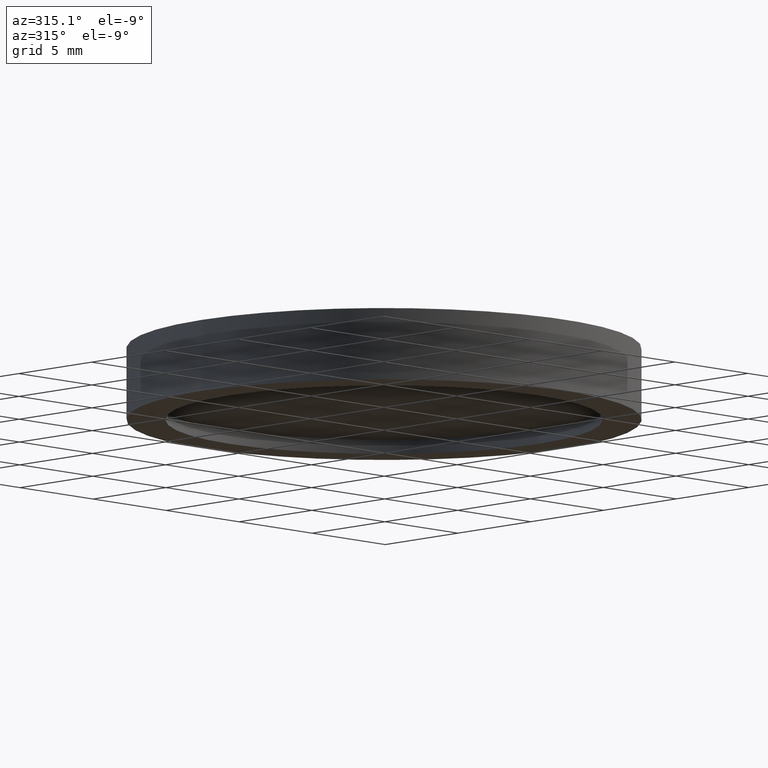
[diagram: clean part render]
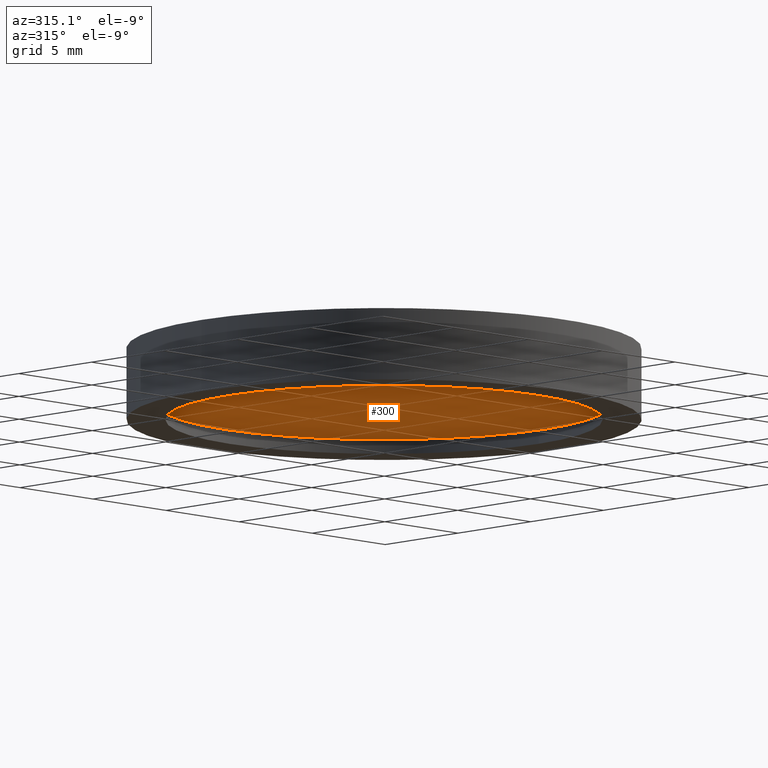
[diagram: same view with one face highlighted and labeled with its STEP entity id]
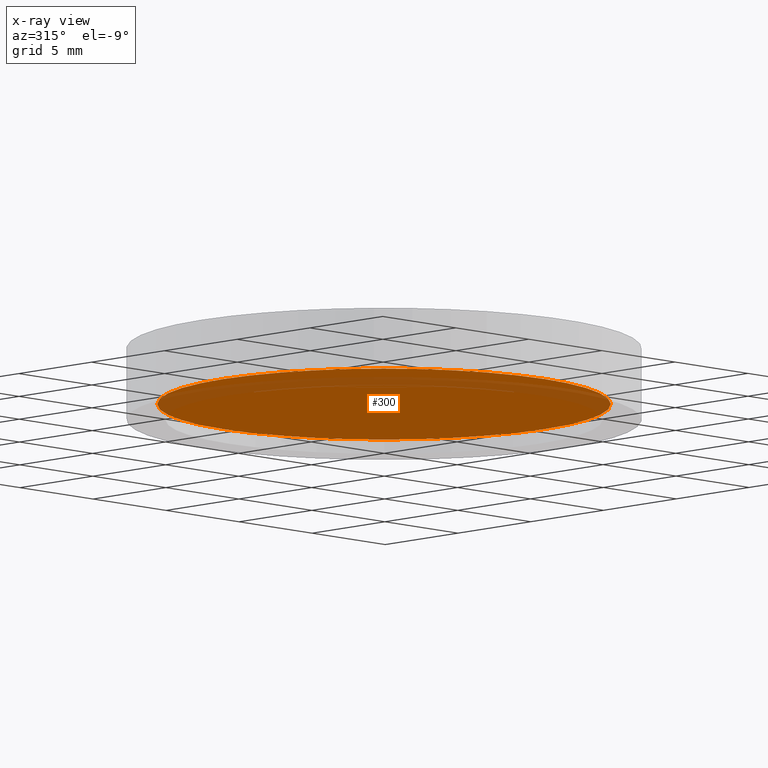
[diagram: x-ray of the same camera — body ghosted, the highlighted face saturated]
A machine part, auxiliary view. The second image highlights one B-rep face of the part: STEP entity #300.
The next image is the same camera in x-ray: the body ghosted, the highlighted face saturated — about 19% of this face is hidden behind the body in this view.
In plain terms, the highlighted planar face has unit normal (0, 0, -1).
Its self-contained STEP definition (entity closure, byte-faithful):
#28 = AXIS2_PLACEMENT_3D ( 'NONE', #386, #1024, #945 ) ;
#30 = PLANE ( 'NONE',  #815 ) ;
#136 = CIRCLE ( 'NONE', #382, 11.00000000000000000 ) ;
#153 = VERTEX_POINT ( 'NONE', #867 ) ;
#167 = ORIENTED_EDGE ( 'NONE', *, *, #633, .T. ) ;
#237 = FACE_OUTER_BOUND ( 'NONE', #589, .T. ) ;
#300 = ADVANCED_FACE ( 'NONE', ( #237 ), #30, .T. ) ;
#337 = DIRECTION ( 'NONE',  ( 0.0000000000000000000, 0.0000000000000000000, -1.000000000000000000 ) ) ;
#347 = DIRECTION ( 'NONE',  ( -1.000000000000000000, 0.0000000000000000000, -0.0000000000000000000 ) ) ;
#382 = AXIS2_PLACEMENT_3D ( 'NONE', #593, #907, #824 ) ;
#386 = CARTESIAN_POINT ( 'NONE',  ( 0.0000000000000000000, 0.0000000000000000000, 0.7610000000000011200 ) ) ;
#464 = VERTEX_POINT ( 'NONE', #971 ) ;
#589 = EDGE_LOOP ( 'NONE', ( #167, #847 ) ) ;
#593 = CARTESIAN_POINT ( 'NONE',  ( 0.0000000000000000000, 0.0000000000000000000, 0.7610000000000011200 ) ) ;
#633 = EDGE_CURVE ( 'NONE', #153, #464, #730, .T. ) ;
#666 = CARTESIAN_POINT ( 'NONE',  ( 0.0000000000000000000, 0.0000000000000000000, 0.7610000000000011200 ) ) ;
#730 = CIRCLE ( 'NONE', #28, 11.00000000000000000 ) ;
#815 = AXIS2_PLACEMENT_3D ( 'NONE', #666, #337, #347 ) ;
#824 = DIRECTION ( 'NONE',  ( -1.000000000000000000, 0.0000000000000000000, 0.0000000000000000000 ) ) ;
#847 = ORIENTED_EDGE ( 'NONE', *, *, #1027, .T. ) ;
#867 = CARTESIAN_POINT ( 'NONE',  ( -11.00000000000000000, 0.0000000000000000000, 0.7610000000000011200 ) ) ;
#907 = DIRECTION ( 'NONE',  ( 0.0000000000000000000, 0.0000000000000000000, -1.000000000000000000 ) ) ;
#945 = DIRECTION ( 'NONE',  ( -1.000000000000000000, 0.0000000000000000000, 0.0000000000000000000 ) ) ;
#971 = CARTESIAN_POINT ( 'NONE',  ( 11.00000000000000000, 1.347111479062088400E-015, 0.7610000000000011200 ) ) ;
#1024 = DIRECTION ( 'NONE',  ( 0.0000000000000000000, 0.0000000000000000000, -1.000000000000000000 ) ) ;
#1027 = EDGE_CURVE ( 'NONE', #464, #153, #136, .T. ) ;